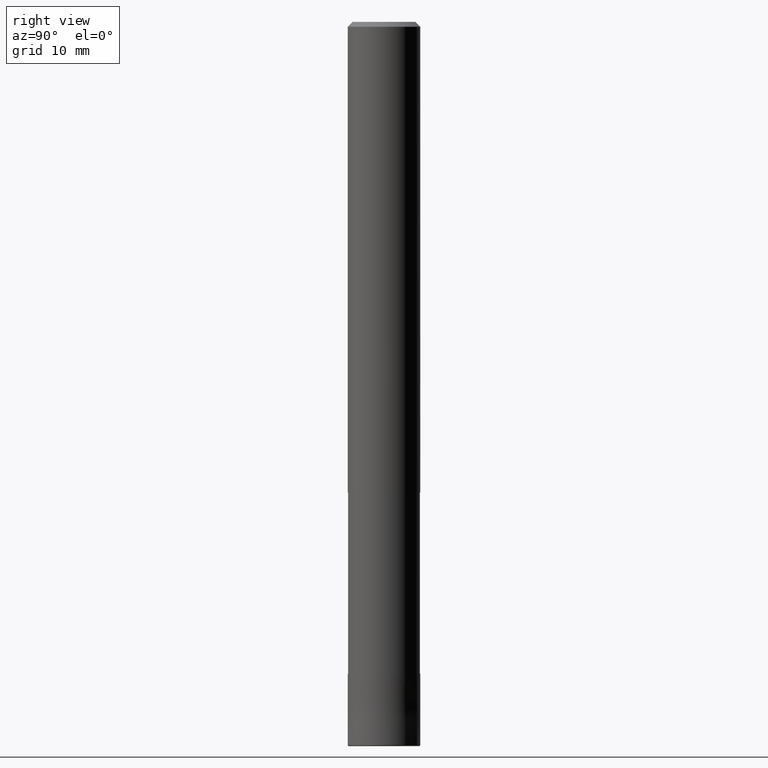
[diagram: clean part render]
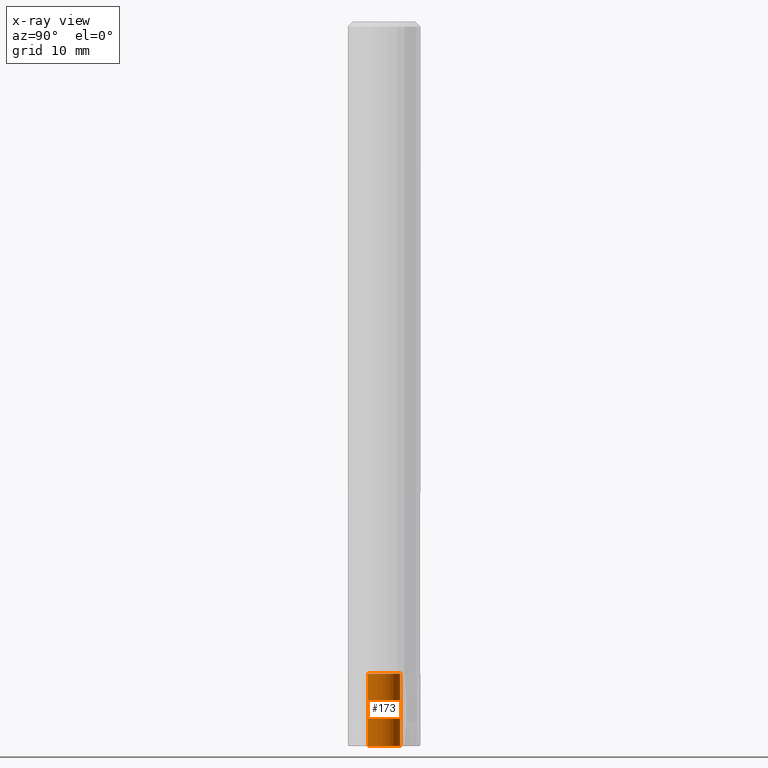
[diagram: x-ray — body ghosted, one internal face saturated and labeled with its STEP entity id]
A machine part, right view, then the same camera in x-ray: the body is ghosted and one INTERNAL B-rep face — a face not visible from any outside direction — is saturated and labeled: STEP entity #173.
In plain terms, the highlighted cylindrical surface (edge-blend (fillet) strip) has radius 1.35 mm, axis along (-0, -0, 1).
Its self-contained STEP definition (entity closure, byte-faithful):
#153=VERTEX_POINT('',#344);
#173=ADVANCED_FACE('',(#368),#369,.F.);
#177=EDGE_CURVE('',#185,#275,#373,.T.);
#185=VERTEX_POINT('',#383);
#207=EDGE_CURVE('',#225,#153,#407,.T.);
#225=VERTEX_POINT('',#426);
#227=EDGE_CURVE('',#185,#225,#428,.T.);
#239=EDGE_CURVE('',#153,#275,#441,.T.);
#275=VERTEX_POINT('',#484);
#344=CARTESIAN_POINT('',(1.65321857766021E-016,-1.35,-60.0));
#368=FACE_OUTER_BOUND('',#586,.T.);
#369=CYLINDRICAL_SURFACE('',#587,1.35);
#373=CIRCLE('',#592,1.35);
#383=CARTESIAN_POINT('',(0.0,1.35,-54.0));
#407=CIRCLE('',#635,1.35);
#426=CARTESIAN_POINT('',(0.0,1.35,-60.0));
#428=LINE('',#662,#663);
#441=LINE('',#681,#682);
#484=CARTESIAN_POINT('',(1.65321857766021E-016,-1.35,-54.0));
#586=EDGE_LOOP('',(#831,#832,#833,#834));
#587=AXIS2_PLACEMENT_3D('',#835,#836,#837);
#592=AXIS2_PLACEMENT_3D('',#838,#839,#840);
#635=AXIS2_PLACEMENT_3D('',#883,#884,#885);
#662=CARTESIAN_POINT('',(-1.65321857766021E-016,1.35,-57.0));
#663=VECTOR('',#904,1.0);
#681=CARTESIAN_POINT('',(1.65321857766021E-016,-1.35,-57.0));
#682=VECTOR('',#918,1.0);
#831=ORIENTED_EDGE('',*,*,#227,.T.);
#832=ORIENTED_EDGE('',*,*,#207,.T.);
#833=ORIENTED_EDGE('',*,*,#239,.T.);
#834=ORIENTED_EDGE('',*,*,#177,.F.);
#835=CARTESIAN_POINT('',(0.0,0.0,-57.0));
#836=DIRECTION('',(-0.0,-0.0,1.0));
#837=DIRECTION('',(0.0,1.0,0.0));
#838=CARTESIAN_POINT('',(0.0,0.0,-54.0));
#839=DIRECTION('',(0.0,0.0,-1.0));
#840=DIRECTION('',(0.0,1.0,0.0));
#883=CARTESIAN_POINT('',(0.0,0.0,-60.0));
#884=DIRECTION('',(0.0,0.0,-1.0));
#885=DIRECTION('',(0.0,1.0,0.0));
#904=DIRECTION('',(0.0,-0.0,-1.0));
#918=DIRECTION('',(0.0,-0.0,1.0));